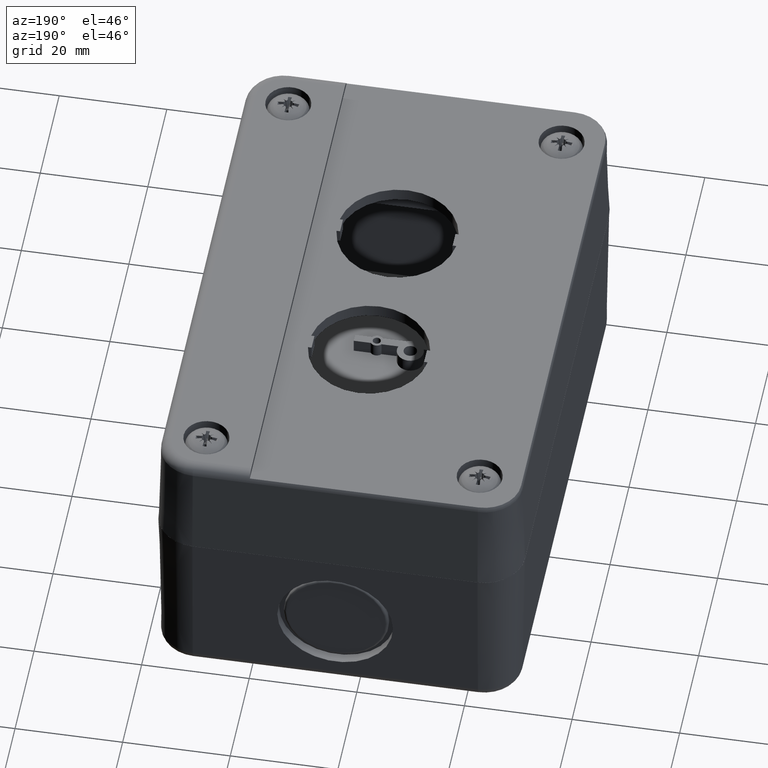
[diagram: clean part render]
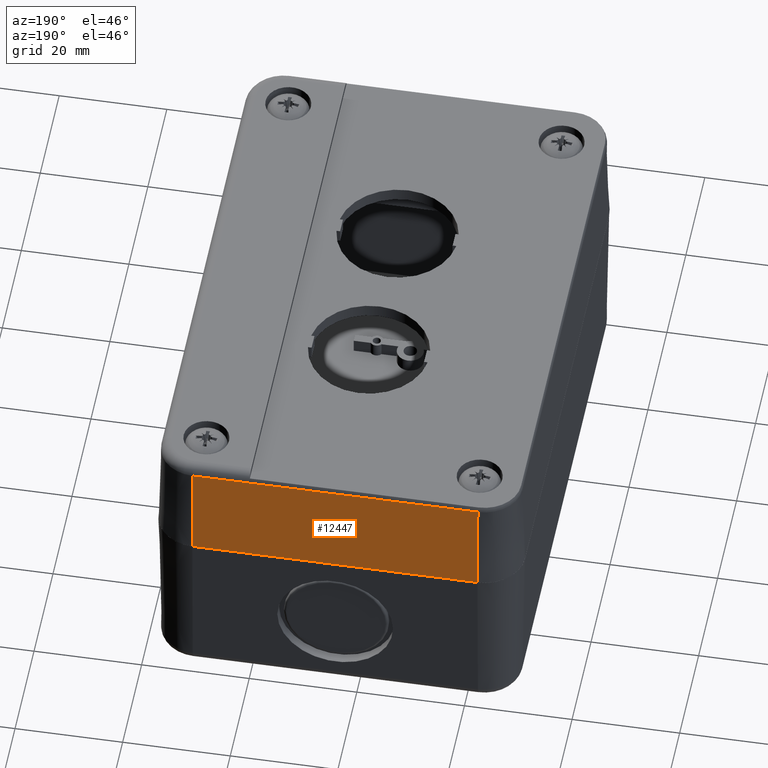
[diagram: same view with one face highlighted and labeled with its STEP entity id]
A machine part, auxiliary view. The second image highlights one B-rep face of the part: STEP entity #12447.
In plain terms, the highlighted planar face has unit normal (-0, 0.9997, 0.0262).
Its self-contained STEP definition (entity closure, byte-faithful):
#12008=CARTESIAN_POINT('',(25.566394415944856,31.336101217052182,1.947646103384255));
#12009=VERTEX_POINT('',#12008);
#12035=CARTESIAN_POINT('',(-27.433605584055144,31.336101217052178,1.947646103384254));
#12036=VERTEX_POINT('',#12035);
#12044=CARTESIAN_POINT('',(-27.433605584055144,31.336101217052178,1.947646103384254));
#12045=DIRECTION('',(1.0,0.0,0.0));
#12046=VECTOR('',#12045,53.0);
#12047=LINE('',#12044,#12046);
#12048=EDGE_CURVE('',#12036,#12009,#12047,.T.);
#12417=CARTESIAN_POINT('',(-27.433605584055144,31.285100308944426,0.0));
#12418=DIRECTION('',(-8.376170E-017,0.999657324975557,-0.026176948307873));
#12419=DIRECTION('',(-1.0,0.0,0.0));
#12420=AXIS2_PLACEMENT_3D('',#12417,#12418,#12419);
#12421=PLANE('',#12420);
#12422=ORIENTED_EDGE('',*,*,#12048,.F.);
#12423=CARTESIAN_POINT('',(-27.433605584055144,31.808818740328164,20.0));
#12424=VERTEX_POINT('',#12423);
#12425=CARTESIAN_POINT('',(-27.433605584055144,31.336101217052178,1.947646103384254));
#12426=DIRECTION('',(0.0,0.026176948307873,0.999657324975557));
#12427=VECTOR('',#12426,18.058542107973995);
#12428=LINE('',#12425,#12427);
#12429=EDGE_CURVE('',#12036,#12424,#12428,.T.);
#12430=ORIENTED_EDGE('',*,*,#12429,.T.);
#12431=CARTESIAN_POINT('',(25.566394415944856,31.808818740328171,20.0));
#12432=VERTEX_POINT('',#12431);
#12433=CARTESIAN_POINT('',(-27.433605584055144,31.808818740328164,20.0));
#12434=DIRECTION('',(1.0,0.0,0.0));
#12435=VECTOR('',#12434,53.0);
#12436=LINE('',#12433,#12435);
#12437=EDGE_CURVE('',#12424,#12432,#12436,.T.);
#12438=ORIENTED_EDGE('',*,*,#12437,.T.);
#12439=CARTESIAN_POINT('',(25.566394415944856,31.336101217052182,1.947646103384255));
#12440=DIRECTION('',(0.0,0.026176948307873,0.999657324975557));
#12441=VECTOR('',#12440,18.058542107973995);
#12442=LINE('',#12439,#12441);
#12443=EDGE_CURVE('',#12009,#12432,#12442,.T.);
#12444=ORIENTED_EDGE('',*,*,#12443,.F.);
#12445=EDGE_LOOP('',(#12422,#12430,#12438,#12444));
#12446=FACE_OUTER_BOUND('',#12445,.T.);
#12447=ADVANCED_FACE('',(#12446),#12421,.T.);